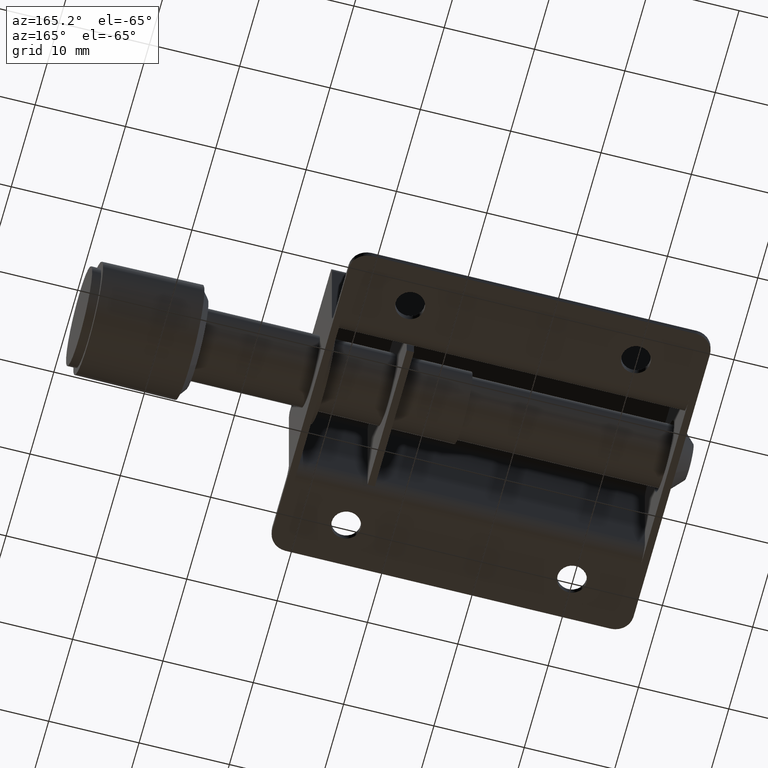
[diagram: clean part render]
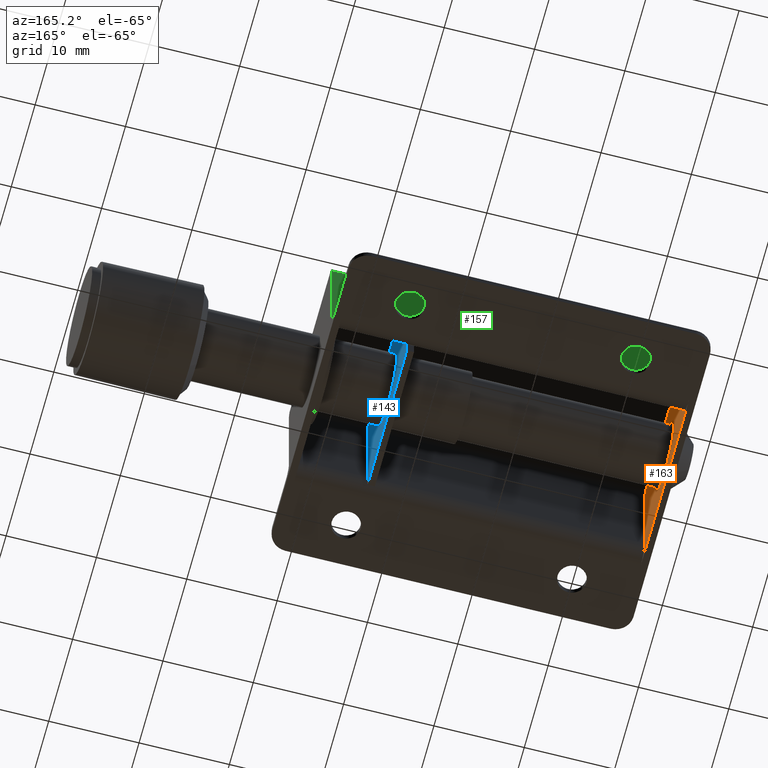
[diagram: same view with three faces highlighted in distinct colors, each labeled with its STEP entity id]
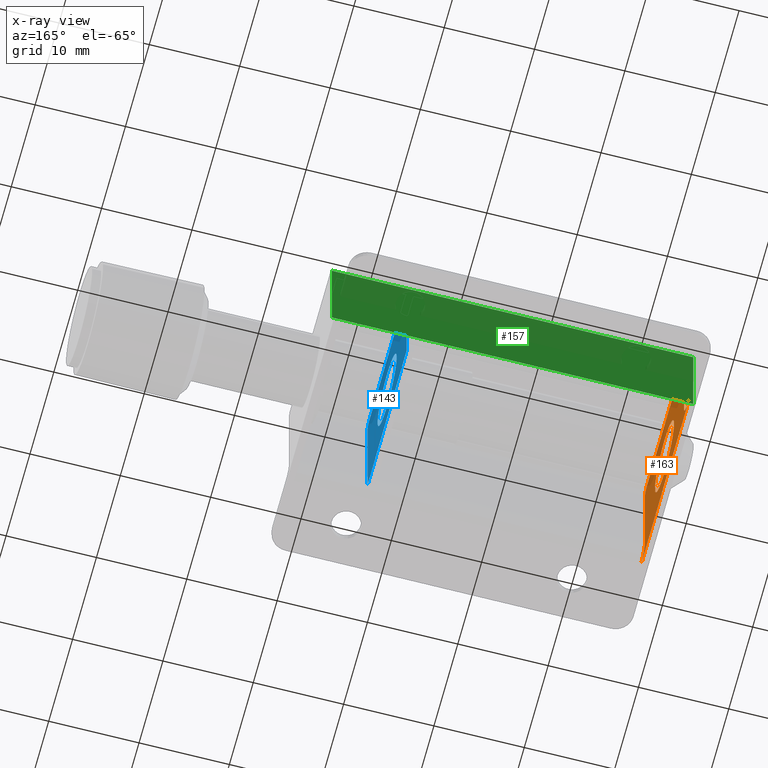
[diagram: x-ray of the same camera — body ghosted, the three highlighted faces saturated]
A machine part, auxiliary view with three faces highlighted in distinct colors.
The next image is the same camera in x-ray (body ghosted, the three faces saturated) — at least one of them is partly hidden behind the body in this view.
Their STEP definitions:

[orange] entity #163 — the highlighted planar face has unit normal (1, 0, 0).
#163=ADVANCED_FACE('',(#729,#730),#728,.T.);
#728=PLANE('',#1452);
#729=FACE_OUTER_BOUND('',#1453,.T.);
#730=FACE_BOUND('',#1454,.T.);
#1449=CARTESIAN_POINT('',(-6.70000000000E+00,1.16000000000E+00,1.54800000000E+01));
#1450=DIRECTION('',(1.00000000000E+00,0.00000000000E+00,-0.00000000000E+00));
#1451=DIRECTION('',(-0.00000000000E+00,0.00000000000E+00,-1.00000000000E+00));
#1452=AXIS2_PLACEMENT_3D('',#1449,#1450,#1451);
#1453=EDGE_LOOP('',(#1978,#1979,#1980,#1981,#1982,#1983,#1984,#1985));
#1454=EDGE_LOOP('',(#1986,#1987));
#1978=ORIENTED_EDGE('',*,*,#2304,.T.);
#1979=ORIENTED_EDGE('',*,*,#2252,.F.);
#1980=ORIENTED_EDGE('',*,*,#2249,.F.);
#1981=ORIENTED_EDGE('',*,*,#2256,.F.);
#1982=ORIENTED_EDGE('',*,*,#2271,.F.);
#1983=ORIENTED_EDGE('',*,*,#2273,.F.);
#1984=ORIENTED_EDGE('',*,*,#2210,.T.);
#1985=ORIENTED_EDGE('',*,*,#2183,.F.);
#1986=ORIENTED_EDGE('',*,*,#2305,.T.);
#1987=ORIENTED_EDGE('',*,*,#2306,.T.);
#2183=EDGE_CURVE('',#2641,#2649,#2650,.T.);
#2210=EDGE_CURVE('',#2831,#2649,#2832,.T.);
#2249=EDGE_CURVE('',#3087,#3094,#3095,.T.);
#2252=EDGE_CURVE('',#3094,#3114,#3115,.T.);
#2256=EDGE_CURVE('',#3134,#3087,#3141,.T.);
#2271=EDGE_CURVE('',#3234,#3134,#3241,.T.);
#2273=EDGE_CURVE('',#2831,#3234,#3253,.T.);
#2304=EDGE_CURVE('',#2641,#3114,#3453,.T.);
#2305=EDGE_CURVE('',#3459,#3460,#3461,.T.);
#2306=EDGE_CURVE('',#3460,#3459,#3467,.T.);
#2641=VERTEX_POINT('',#4058);
#2649=VERTEX_POINT('',#4063);
#2650=LINE('',#4064,#4065);
#2831=VERTEX_POINT('',#4177);
#2832=CIRCLE('',#4181,2.00000000000E+00);
#3087=VERTEX_POINT('',#4345);
#3094=VERTEX_POINT('',#4349);
#3095=CIRCLE('',#4353,9.50000000000E-01);
#3114=VERTEX_POINT('',#4361);
#3115=LINE('',#4362,#4363);
#3134=VERTEX_POINT('',#4372);
#3141=LINE('',#4376,#4377);
#3234=VERTEX_POINT('',#4432);
#3241=CIRCLE('',#4439,9.50000000000E-01);
#3253=LINE('',#4443,#4444);
#3453=CIRCLE('',#4571,2.00000000000E+00);
#3459=VERTEX_POINT('',#4572);
#3460=VERTEX_POINT('',#4573);
#3461=CIRCLE('',#4577,4.00000000000E+00);
#3467=CIRCLE('',#4581,4.00000000000E+00);
#4058=CARTESIAN_POINT('',(-6.70000000000E+00,2.36000000000E+01,-8.00000000000E-01));
#4063=CARTESIAN_POINT('',(-6.70000000000E+00,3.20000000000E+00,-8.00000000000E-01));
#4064=CARTESIAN_POINT('',(-6.70000000000E+00,2.36000000000E+01,-8.00000000000E-01));
#4065=VECTOR('',#4066,2.04000000000E+01);
#4066=DIRECTION('',(0.00000000000E+00,-1.00000000000E+00,0.00000000000E+00));
#4177=CARTESIAN_POINT('',(-6.70000000000E+00,5.20000000000E+00,1.20000000000E+00));
#4178=CARTESIAN_POINT('',(-6.70000000000E+00,3.20000000000E+00,1.20000000000E+00));
#4179=DIRECTION('',(-1.00000000000E+00,-0.00000000000E+00,0.00000000000E+00));
#4180=DIRECTION('',(0.00000000000E+00,-0.00000000000E+00,1.00000000000E+00));
#4181=AXIS2_PLACEMENT_3D('',#4178,#4179,#4180);
#4345=CARTESIAN_POINT('',(-6.70000000000E+00,2.06500000000E+01,1.40000000000E+01));
#4349=CARTESIAN_POINT('',(-6.70000000000E+00,2.16000000000E+01,1.30500000000E+01));
#4350=CARTESIAN_POINT('',(-6.70000000000E+00,2.06500000000E+01,1.30500000000E+01));
#4351=DIRECTION('',(-1.00000000000E+00,0.00000000000E+00,0.00000000000E+00));
#4352=DIRECTION('',(-0.00000000000E+00,1.00000000000E+00,-1.83690953073E-16));
#4353=AXIS2_PLACEMENT_3D('',#4350,#4351,#4352);
#4361=CARTESIAN_POINT('',(-6.70000000000E+00,2.16000000000E+01,1.20000000000E+00));
#4362=CARTESIAN_POINT('',(-6.70000000000E+00,2.16000000000E+01,1.30500000000E+01));
#4363=VECTOR('',#4364,1.18500000000E+01);
#4364=DIRECTION('',(0.00000000000E+00,0.00000000000E+00,-1.00000000000E+00));
#4372=CARTESIAN_POINT('',(-6.70000000000E+00,6.15000000000E+00,1.40000000000E+01));
#4376=CARTESIAN_POINT('',(-6.70000000000E+00,6.15000000000E+00,1.40000000000E+01));
#4377=VECTOR('',#4378,1.45000000000E+01);
#4378=DIRECTION('',(0.00000000000E+00,1.00000000000E+00,4.84149119263E-13));
#4432=CARTESIAN_POINT('',(-6.70000000000E+00,5.20000000000E+00,1.30500000000E+01));
#4436=CARTESIAN_POINT('',(-6.70000000000E+00,6.15000000000E+00,1.30500000000E+01));
#4437=DIRECTION('',(-1.00000000000E+00,0.00000000000E+00,0.00000000000E+00));
#4438=DIRECTION('',(0.00000000000E+00,4.08562073062E-13,1.00000000000E+00));
#4439=AXIS2_PLACEMENT_3D('',#4436,#4437,#4438);
#4443=CARTESIAN_POINT('',(-6.70000000000E+00,5.20000000000E+00,1.20000000000E+00));
#4444=VECTOR('',#4445,1.18500000000E+01);
#4445=DIRECTION('',(0.00000000000E+00,0.00000000000E+00,1.00000000000E+00));
#4568=CARTESIAN_POINT('',(-6.70000000000E+00,2.36000000000E+01,1.20000000000E+00));
#4569=DIRECTION('',(-1.00000000000E+00,-0.00000000000E+00,0.00000000000E+00));
#4570=DIRECTION('',(0.00000000000E+00,-0.00000000000E+00,1.00000000000E+00));
#4571=AXIS2_PLACEMENT_3D('',#4568,#4569,#4570);
#4572=CARTESIAN_POINT('',(-6.70000000000E+00,1.34000000000E+01,2.20000000000E+00));
#4573=CARTESIAN_POINT('',(-6.70000000000E+00,1.34000000000E+01,1.02000000000E+01));
#4574=CARTESIAN_POINT('',(-6.70000000000E+00,1.34000000000E+01,6.20000000000E+00));
#4575=DIRECTION('',(-1.00000000000E+00,-0.00000000000E+00,0.00000000000E+00));
#4576=DIRECTION('',(0.00000000000E+00,-1.22460635382E-16,-1.00000000000E+00));
#4577=AXIS2_PLACEMENT_3D('',#4574,#4575,#4576);
#4578=CARTESIAN_POINT('',(-6.70000000000E+00,1.34000000000E+01,6.20000000000E+00));
#4579=DIRECTION('',(-1.00000000000E+00,-0.00000000000E+00,0.00000000000E+00));
#4580=DIRECTION('',(0.00000000000E+00,-1.22460635382E-16,-1.00000000000E+00));
#4581=AXIS2_PLACEMENT_3D('',#4578,#4579,#4580);

[blue] entity #143 — the highlighted planar face has unit normal (-1, 0, 0).
#143=ADVANCED_FACE('',(#524,#525),#523,.F.);
#523=PLANE('',#1347);
#524=FACE_OUTER_BOUND('',#1348,.T.);
#525=FACE_BOUND('',#1349,.T.);
#1344=CARTESIAN_POINT('',(2.40000000000E+01,3.56000000000E+00,-2.28000000000E+00));
#1345=DIRECTION('',(-1.00000000000E+00,0.00000000000E+00,0.00000000000E+00));
#1346=DIRECTION('',(0.00000000000E+00,0.00000000000E+00,1.00000000000E+00));
#1347=AXIS2_PLACEMENT_3D('',#1344,#1345,#1346);
#1348=EDGE_LOOP('',(#1876,#1877,#1878,#1879,#1880,#1881,#1882,#1883));
#1349=EDGE_LOOP('',(#1884,#1885));
#1876=ORIENTED_EDGE('',*,*,#2267,.F.);
#1877=ORIENTED_EDGE('',*,*,#2228,.F.);
#1878=ORIENTED_EDGE('',*,*,#2274,.F.);
#1879=ORIENTED_EDGE('',*,*,#2275,.F.);
#1880=ORIENTED_EDGE('',*,*,#2276,.F.);
#1881=ORIENTED_EDGE('',*,*,#2261,.F.);
#1882=ORIENTED_EDGE('',*,*,#2258,.F.);
#1883=ORIENTED_EDGE('',*,*,#2265,.F.);
#1884=ORIENTED_EDGE('',*,*,#2277,.T.);
#1885=ORIENTED_EDGE('',*,*,#2278,.T.);
#2228=EDGE_CURVE('',#2845,#2955,#2956,.T.);
#2258=EDGE_CURVE('',#3147,#3155,#3156,.T.);
#2261=EDGE_CURVE('',#3155,#3175,#3176,.T.);
#2265=EDGE_CURVE('',#3195,#3147,#3203,.T.);
#2267=EDGE_CURVE('',#2955,#3195,#3215,.T.);
#2274=EDGE_CURVE('',#3259,#2845,#3260,.T.);
#2275=EDGE_CURVE('',#3266,#3259,#3267,.T.);
#2276=EDGE_CURVE('',#3175,#3266,#3273,.T.);
#2277=EDGE_CURVE('',#3279,#3280,#3281,.T.);
#2278=EDGE_CURVE('',#3280,#3279,#3287,.T.);
#2845=VERTEX_POINT('',#4186);
#2955=VERTEX_POINT('',#4260);
#2956=LINE('',#4261,#4262);
#3147=VERTEX_POINT('',#4379);
#3155=VERTEX_POINT('',#4384);
#3156=CIRCLE('',#4388,9.50000000000E-01);
#3175=VERTEX_POINT('',#4397);
#3176=LINE('',#4398,#4399);
#3195=VERTEX_POINT('',#4408);
#3203=LINE('',#4413,#4414);
#3215=CIRCLE('',#4422,9.50000000000E-01);
#3259=VERTEX_POINT('',#4446);
#3260=LINE('',#4447,#4448);
#3266=VERTEX_POINT('',#4450);
#3267=LINE('',#4451,#4452);
#3273=LINE('',#4454,#4455);
#3279=VERTEX_POINT('',#4457);
#3280=VERTEX_POINT('',#4458);
#3281=CIRCLE('',#4462,4.00000000000E+00);
#3287=CIRCLE('',#4466,4.00000000000E+00);
#4186=CARTESIAN_POINT('',(2.40000000000E+01,5.20000000000E+00,1.20000000000E+00));
#4260=CARTESIAN_POINT('',(2.40000000000E+01,5.20000000000E+00,1.30500000000E+01));
#4261=CARTESIAN_POINT('',(2.40000000000E+01,5.20000000000E+00,1.20000000000E+00));
#4262=VECTOR('',#4263,1.18500000000E+01);
#4263=DIRECTION('',(0.00000000000E+00,0.00000000000E+00,1.00000000000E+00));
#4379=CARTESIAN_POINT('',(2.40000000000E+01,2.06500000000E+01,1.40000000000E+01));
#4384=CARTESIAN_POINT('',(2.40000000000E+01,2.16000000000E+01,1.30500000000E+01));
#4385=CARTESIAN_POINT('',(2.40000000000E+01,2.06500000000E+01,1.30500000000E+01));
#4386=DIRECTION('',(-1.00000000000E+00,0.00000000000E+00,0.00000000000E+00));
#4387=DIRECTION('',(-0.00000000000E+00,-0.00000000000E+00,-1.00000000000E+00));
#4388=AXIS2_PLACEMENT_3D('',#4385,#4386,#4387);
#4397=CARTESIAN_POINT('',(2.40000000000E+01,2.16000000000E+01,1.20000000000E+00));
#4398=CARTESIAN_POINT('',(2.40000000000E+01,2.16000000000E+01,1.30500000000E+01));
#4399=VECTOR('',#4400,1.18500000000E+01);
#4400=DIRECTION('',(0.00000000000E+00,0.00000000000E+00,-1.00000000000E+00));
#4408=CARTESIAN_POINT('',(2.40000000000E+01,6.15000000000E+00,1.40000000000E+01));
#4413=CARTESIAN_POINT('',(2.40000000000E+01,6.15000000000E+00,1.40000000000E+01));
#4414=VECTOR('',#4415,1.45000000000E+01);
#4415=DIRECTION('',(0.00000000000E+00,1.00000000000E+00,4.84149119263E-13));
#4419=CARTESIAN_POINT('',(2.40000000000E+01,6.15000000000E+00,1.30500000000E+01));
#4420=DIRECTION('',(-1.00000000000E+00,0.00000000000E+00,0.00000000000E+00));
#4421=DIRECTION('',(-0.00000000000E+00,-0.00000000000E+00,-1.00000000000E+00));
#4422=AXIS2_PLACEMENT_3D('',#4419,#4420,#4421);
#4446=CARTESIAN_POINT('',(2.40000000000E+01,5.20000000000E+00,-8.00000000000E-01));
#4447=CARTESIAN_POINT('',(2.40000000000E+01,5.20000000000E+00,-8.00000000000E-01));
#4448=VECTOR('',#4449,2.00000000000E+00);
#4449=DIRECTION('',(0.00000000000E+00,0.00000000000E+00,1.00000000000E+00));
#4450=CARTESIAN_POINT('',(2.40000000000E+01,2.16000000000E+01,-8.00000000000E-01));
#4451=CARTESIAN_POINT('',(2.40000000000E+01,2.16000000000E+01,-8.00000000000E-01));
#4452=VECTOR('',#4453,1.64000000000E+01);
#4453=DIRECTION('',(0.00000000000E+00,-1.00000000000E+00,1.89550272497E-16));
#4454=CARTESIAN_POINT('',(2.40000000000E+01,2.16000000000E+01,1.20000000000E+00));
#4455=VECTOR('',#4456,2.00000000000E+00);
#4456=DIRECTION('',(0.00000000000E+00,0.00000000000E+00,-1.00000000000E+00));
#4457=CARTESIAN_POINT('',(2.40000000000E+01,1.34000000000E+01,1.02000000000E+01));
#4458=CARTESIAN_POINT('',(2.40000000000E+01,1.34000000000E+01,2.20000000000E+00));
#4459=CARTESIAN_POINT('',(2.40000000000E+01,1.34000000000E+01,6.20000000000E+00));
#4460=DIRECTION('',(-1.00000000000E+00,0.00000000000E+00,0.00000000000E+00));
#4461=DIRECTION('',(0.00000000000E+00,-1.22460635382E-16,1.00000000000E+00));
#4462=AXIS2_PLACEMENT_3D('',#4459,#4460,#4461);
#4463=CARTESIAN_POINT('',(2.40000000000E+01,1.34000000000E+01,6.20000000000E+00));
#4464=DIRECTION('',(-1.00000000000E+00,0.00000000000E+00,0.00000000000E+00));
#4465=DIRECTION('',(0.00000000000E+00,-1.22460635382E-16,1.00000000000E+00));
#4466=AXIS2_PLACEMENT_3D('',#4463,#4464,#4465);

[green] entity #157 — the highlighted planar face has unit normal (0, -1, 0).
#157=ADVANCED_FACE('',(#666),#665,.F.);
#665=PLANE('',#1419);
#666=FACE_OUTER_BOUND('',#1420,.T.);
#1416=CARTESIAN_POINT('',(-1.15000000000E+01,2.24000000000E+01,1.42350000000E+01));
#1417=DIRECTION('',(0.00000000000E+00,-1.00000000000E+00,0.00000000000E+00));
#1418=DIRECTION('',(0.00000000000E+00,0.00000000000E+00,-1.00000000000E+00));
#1419=AXIS2_PLACEMENT_3D('',#1416,#1417,#1418);
#1420=EDGE_LOOP('',(#1940,#1941,#1942,#1943));
#1940=ORIENTED_EDGE('',*,*,#2193,.T.);
#1941=ORIENTED_EDGE('',*,*,#2293,.F.);
#1942=ORIENTED_EDGE('',*,*,#2198,.F.);
#1943=ORIENTED_EDGE('',*,*,#2294,.T.);
#2193=EDGE_CURVE('',#2683,#2710,#2717,.T.);
#2198=EDGE_CURVE('',#2744,#2751,#2752,.T.);
#2293=EDGE_CURVE('',#2751,#2710,#3381,.T.);
#2294=EDGE_CURVE('',#2744,#2683,#3387,.T.);
#2683=VERTEX_POINT('',#4084);
#2710=VERTEX_POINT('',#4100);
#2717=LINE('',#4105,#4106);
#2744=VERTEX_POINT('',#4122);
#2751=VERTEX_POINT('',#4127);
#2752=LINE('',#4128,#4129);
#3381=LINE('',#4522,#4523);
#3387=LINE('',#4525,#4526);
#4084=CARTESIAN_POINT('',(3.25000000000E+01,2.24000000000E+01,1.30500000000E+01));
#4100=CARTESIAN_POINT('',(3.25000000000E+01,2.24000000000E+01,1.20000000000E+00));
#4105=CARTESIAN_POINT('',(3.25000000000E+01,2.24000000000E+01,1.30500000000E+01));
#4106=VECTOR('',#4107,1.18500000000E+01);
#4107=DIRECTION('',(0.00000000000E+00,0.00000000000E+00,-1.00000000000E+00));
#4122=CARTESIAN_POINT('',(-7.50000000000E+00,2.24000000000E+01,1.30500000000E+01));
#4127=CARTESIAN_POINT('',(-7.50000000000E+00,2.24000000000E+01,1.20000000000E+00));
#4128=CARTESIAN_POINT('',(-7.50000000000E+00,2.24000000000E+01,1.30500000000E+01));
#4129=VECTOR('',#4130,1.18500000000E+01);
#4130=DIRECTION('',(0.00000000000E+00,0.00000000000E+00,-1.00000000000E+00));
#4522=CARTESIAN_POINT('',(-7.50000000000E+00,2.24000000000E+01,1.20000000000E+00));
#4523=VECTOR('',#4524,4.00000000000E+01);
#4524=DIRECTION('',(1.00000000000E+00,0.00000000000E+00,0.00000000000E+00));
#4525=CARTESIAN_POINT('',(-7.50000000000E+00,2.24000000000E+01,1.30500000000E+01));
#4526=VECTOR('',#4527,4.00000000000E+01);
#4527=DIRECTION('',(1.00000000000E+00,0.00000000000E+00,0.00000000000E+00));